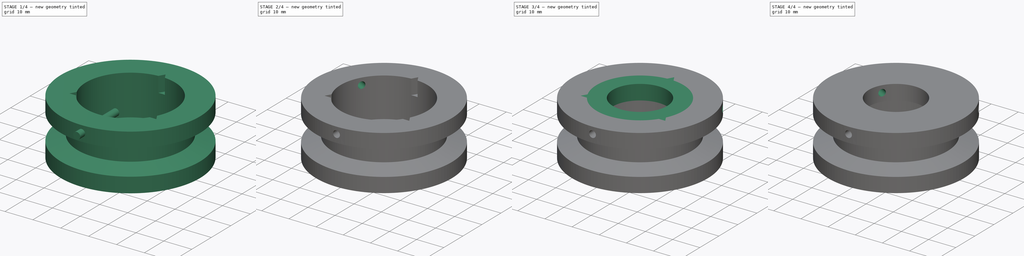
[diagram: build sequence overview — one tinted view per stage of 4, left to right]
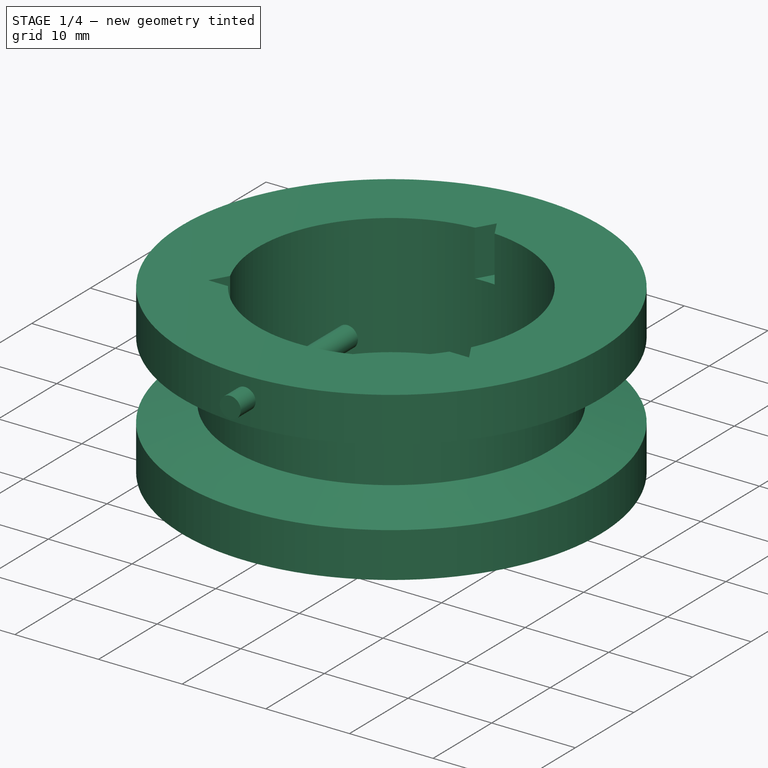
[diagram: stage 1 of 4 — iso view after this stage's code; geometry added in this stage tinted green]
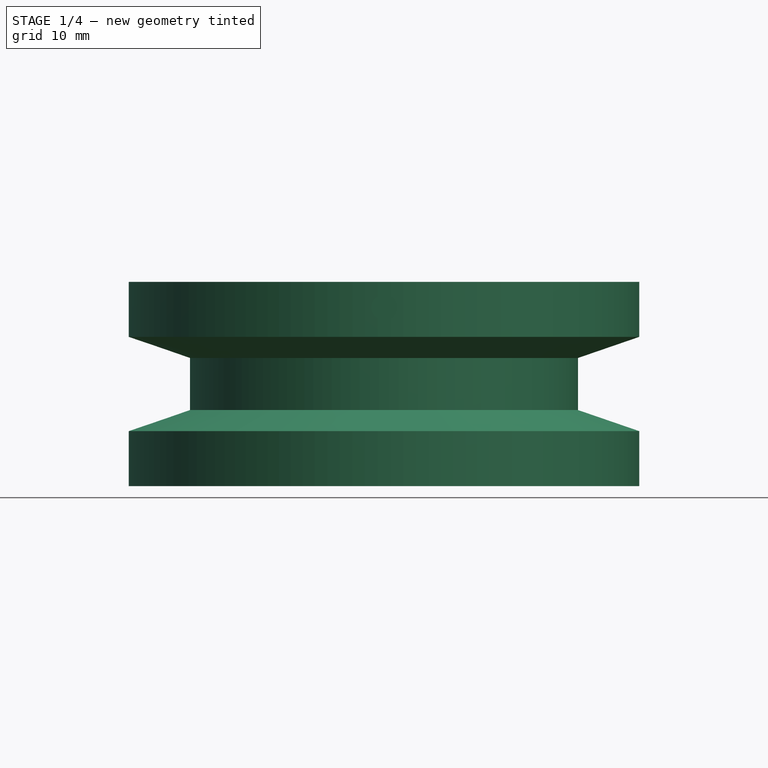
[diagram: stage 1 of 4 — front view after this stage's code; geometry added in this stage tinted green]
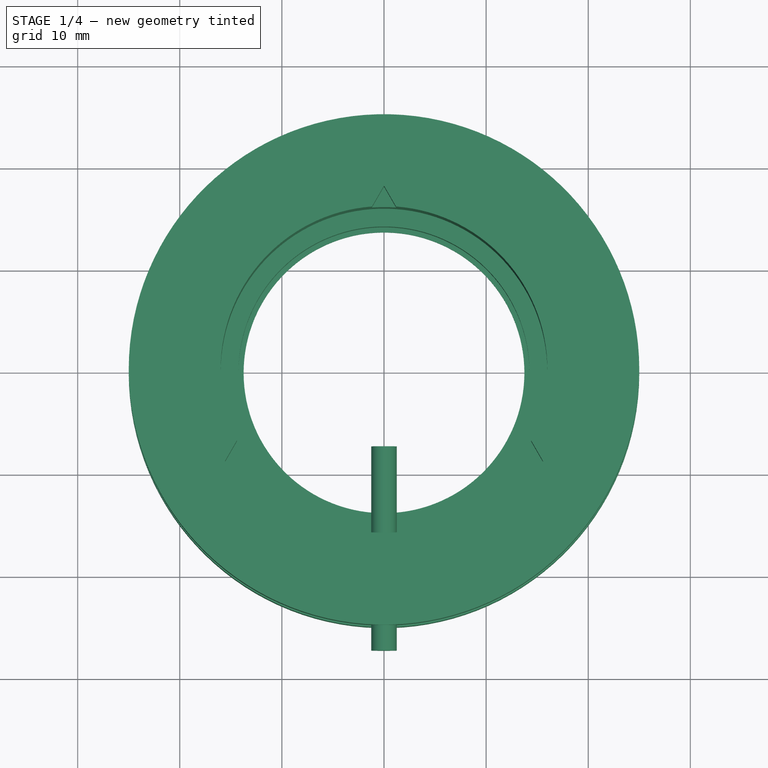
[diagram: stage 1 of 4 — top view after this stage's code; geometry added in this stage tinted green]
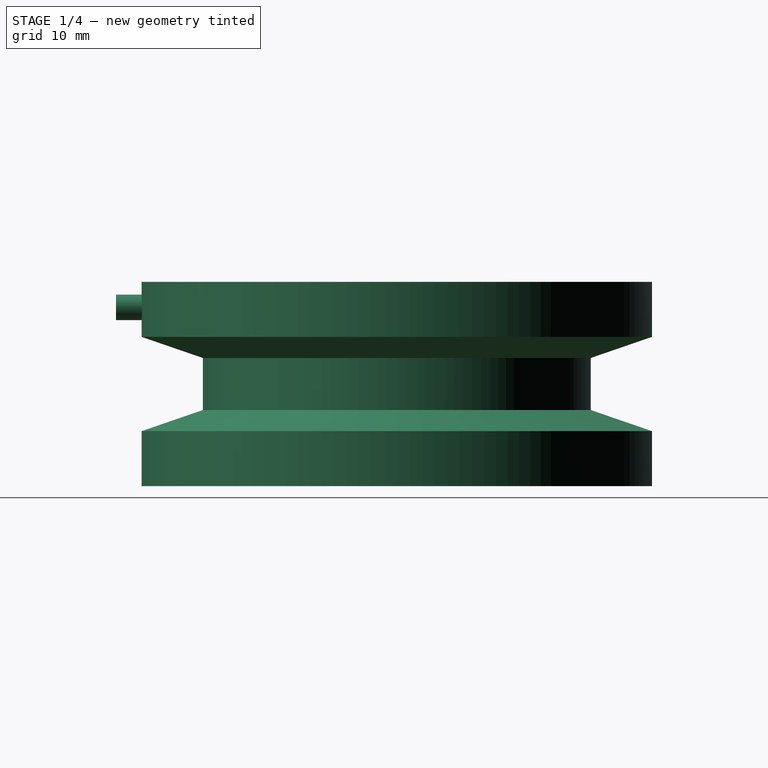
[diagram: stage 1 of 4 — right view after this stage's code; geometry added in this stage tinted green]
FCSTD DOCUMENT  (FreeCAD 0.15R4503 (Git))
Label: V_Belt_Pulley_V2
License: CC-BY 3.0
LicenseURL: http://creativecommons.org/licenses/by/3.0/
objects: Part::Cut×6, Sketcher::SketchObject×3, Part::Cylinder×3, App::DocumentObjectGroup×2, PartDesign::Revolution×1, PartDesign::Pad×1, PartDesign::Pocket×1
note: 18 computed .brp shape members not serialized (recipe doc carries the construction recipe); baked Part::Feature solids carry a one-line shape summary decoded from their .brp

FEATURE [Sketcher::SketchObject] Sketch  label="1_BodyBase_Sketch"
  Placement = pos=(0,0,0) rot=(1,0,0;1.5708rad)
  sketch-geometry (12):
    g0: LineSegment StartX=13.75 StartY=-10 StartZ=0 EndX=25 EndY=-10 EndZ=0
    g1: LineSegment StartX=25 StartY=-10 StartZ=0 EndX=25 EndY=-4.61597 EndZ=0
    g2: LineSegment StartX=25 StartY=-4.61597 StartZ=0 EndX=19 EndY=-2.55 EndZ=0
    g3: LineSegment StartX=14.25 StartY=-4.5 StartZ=0 EndX=14.25 EndY=-9 EndZ=0
    g4: LineSegment StartX=14.25 StartY=-9 StartZ=0 EndX=13.75 EndY=-9 EndZ=0
    g5: LineSegment StartX=13.75 StartY=-9 StartZ=0 EndX=13.75 EndY=-10 EndZ=0
    g6: LineSegment StartX=19 StartY=2.55 StartZ=0 EndX=19 EndY=-2.55 EndZ=0
    g7: LineSegment StartX=14.25 StartY=-4.5 StartZ=0 EndX=16 EndY=-4.5 EndZ=0
    g8: LineSegment StartX=16 StartY=-4.5 StartZ=0 EndX=16 EndY=10 EndZ=0
    g9: LineSegment StartX=19 StartY=2.55 StartZ=0 EndX=25 EndY=4.61597 EndZ=0
    g10: LineSegment StartX=25 StartY=4.61597 StartZ=0 EndX=25 EndY=10 EndZ=0
    g11: LineSegment StartX=25 StartY=10 StartZ=0 EndX=16 EndY=10 EndZ=0
  constraints (35):
    c: Horizontal(g0)
    c: Coincident(g0,g1)
    c: Vertical(g1)
    c: Coincident(g1,g2)
    c: Coincident(g3,g4)
    c: Coincident(g4,g5)
    c: Coincident(g5,g0)
    c: Horizontal(g4)
    c: Vertical(g3)
    c: Vertical(g5)
    c: DistanceY(g5) = -1
    c: DistanceY(g3,g0) = -5.5
    c: DistanceX(g-1,g0) = 13.75
    c: DistanceX(g-1,g3) = 14.25
    c: Coincident(g6,g2)
    c: Vertical(g6)
    c: DistanceX(g-1,g0) = 25
    c: Coincident(g3,g7)
    c: Coincident(g7,g8)
    c: Vertical(g8)
    c: DistanceX(g-1,g8) = 16
    c: Horizontal(g7)
    c: Angle(g2,g0) = 0.331613
    c: DistanceX(g-1,g6) = 19
    c: Symmetric(g2,g6,g-1)
    c: Coincident(g6,g9)
    c: Coincident(g9,g10)
    c: Vertical(g10)
    c: Coincident(g10,g11)
    c: Horizontal(g11)
    c: Coincident(g8,g11)
    c: DistanceY(g6) = -5.1
    c: Symmetric(g1,g9,g-1)
    c: Symmetric(g10,g0,g-1)
    c: DistanceY(g10,g0) = -20
FEATURE [PartDesign::Revolution] Revolution001  label="1_BodyBase_Revolution"
  Angle = 360
  Axis = (0,0,1)
  Base = (0,0,0)
  Placement = pos=(0,0,0) rot=(1,0,0;1.5708rad)
  ReferenceAxis = -> Sketch [V_Axis]
  Reversed = true
  Sketch = -> Sketch
FEATURE [Sketcher::SketchObject] Sketch005  label="2_Slots_Sketch"
  Placement = pos=(0,0,10) rot=(0,0,1;3.14159rad)
  Support = -> Revolution001 [Face10]
  sketch-geometry (4):
    g0: LineSegment StartX=0 StartY=-18 StartZ=0 EndX=15.5885 EndY=9 EndZ=0
    g1: LineSegment StartX=15.5885 StartY=9 StartZ=0 EndX=-15.5885 EndY=9 EndZ=0
    g2: LineSegment StartX=-15.5885 StartY=9 StartZ=0 EndX=0 EndY=-18 EndZ=0
    g3: Circle [constr] CenterX=0 CenterY=0 CenterZ=0 NormalX=0 NormalY=0 NormalZ=1 Radius=18
  constraints (12):
    c: Coincident(g0,g1)
    c: Coincident(g1,g2)
    c: Coincident(g2,g0)
    c: Equal(g0,g1)
    c: Equal(g0,g2)
    c: PointOnObject(g1,g3)
    c: PointOnObject(g2,g3)
    c: Coincident(g0,g-1)
    c: Radius(g3) = 18
    c: Coincident(g3,g-1)
    c: PointOnObject(g0,g3)
    c: PointOnObject(g0,g-2)
FEATURE [PartDesign::Pocket] Pocket  label="2_Slots_Pocket"
  Length = 5.5
  Placement = pos=(0,0,0) rot=(1,0,0;1.5708rad)
  Sketch = -> Sketch005
  Type = 0
FEATURE [Part::Cylinder] Cylinder  label="A_FrontHole_Cylinder"
  Angle = 360
  Height = 20
  Placement = pos=(0,-7.5,7.5) rot=(1,0,0;1.5708rad)
  Radius = 1.25
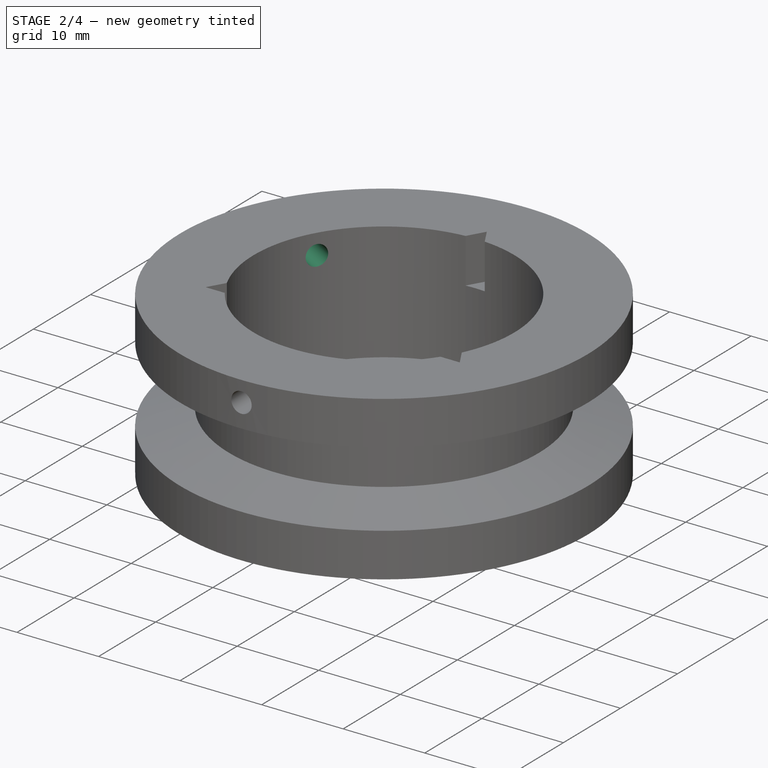
[diagram: stage 2 of 4 — iso view after this stage's code; geometry added in this stage tinted green]
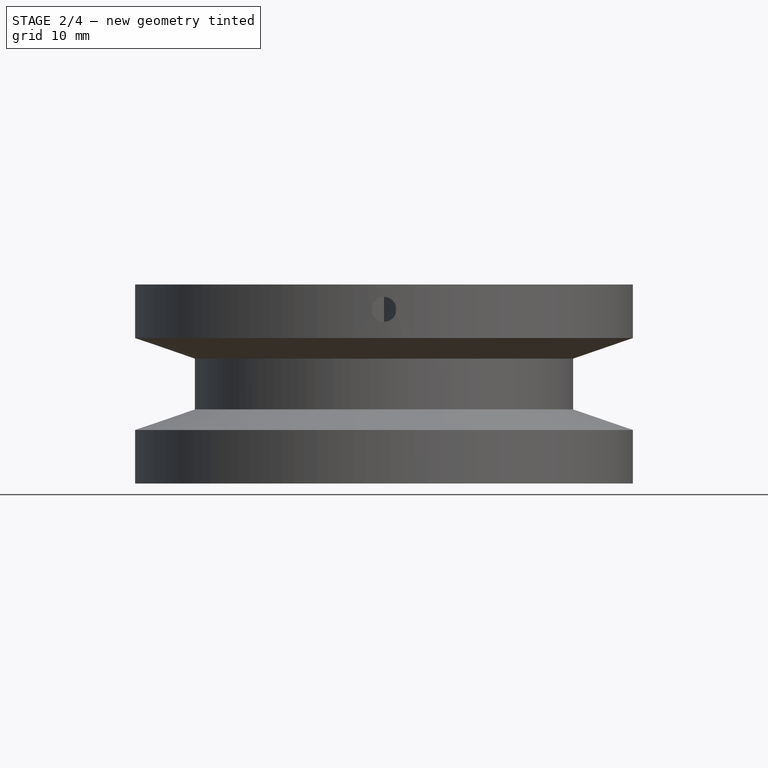
[diagram: stage 2 of 4 — front view after this stage's code; geometry added in this stage tinted green]
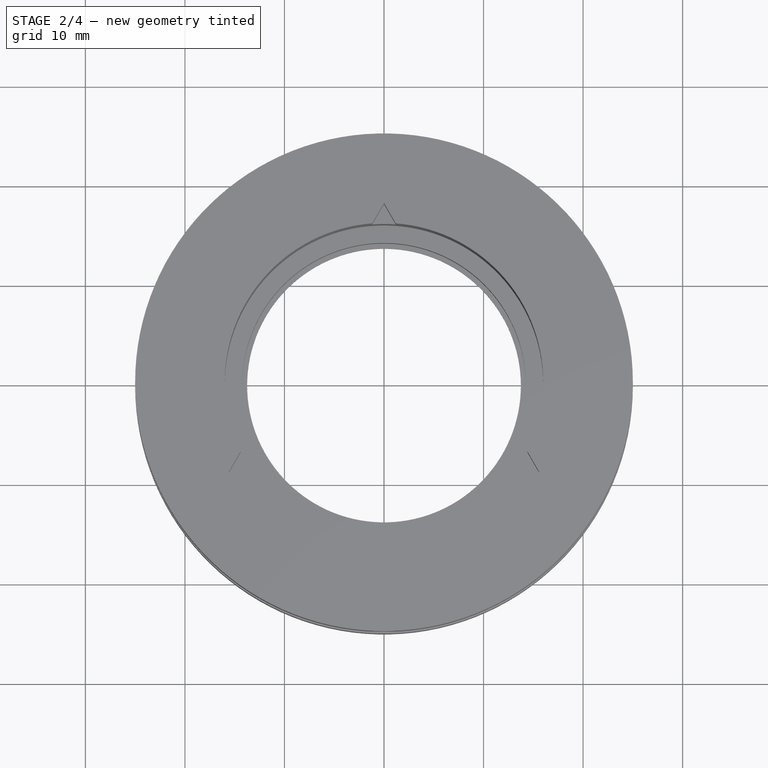
[diagram: stage 2 of 4 — top view after this stage's code; geometry added in this stage tinted green]
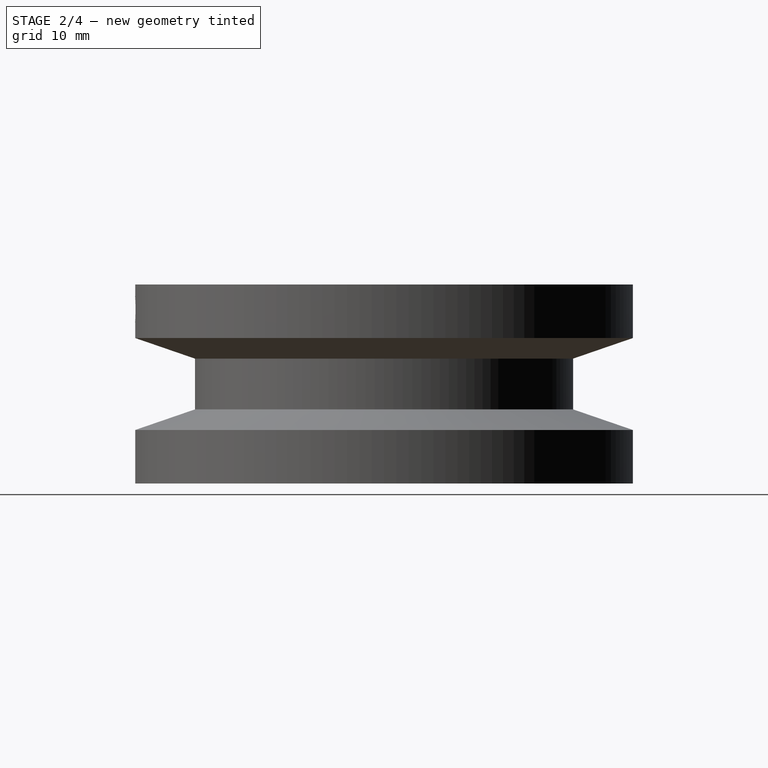
[diagram: stage 2 of 4 — right view after this stage's code; geometry added in this stage tinted green]
FEATURE [Part::Cylinder] Cylinder001  label="B_LeftHole_Cylinder"
  Angle = 360
  Height = 20
  Placement = pos=(-6.49519,3.75,7.5) rot=(0.377964,-0.654654,-0.654654;2.41886rad)
  Radius = 1.25
FEATURE [App::DocumentObjectGroup] Group001  label="Ring"
  Group = -> [Cut002]
FEATURE [Part::Cut] Cut003  label="2_BodyFrontHole_Cut"
  Base = -> Pocket
  Tool = -> Cylinder
FEATURE [Part::Cut] Cut004  label="3_BodyLeftHole_Cut"
  Base = -> Cut003
  Tool = -> Cylinder001
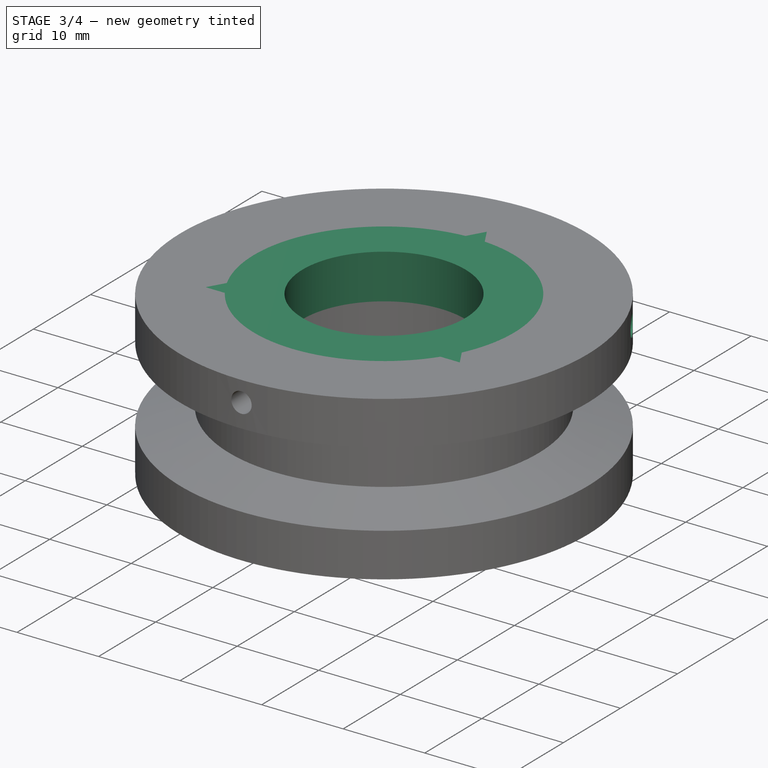
[diagram: stage 3 of 4 — iso view after this stage's code; geometry added in this stage tinted green]
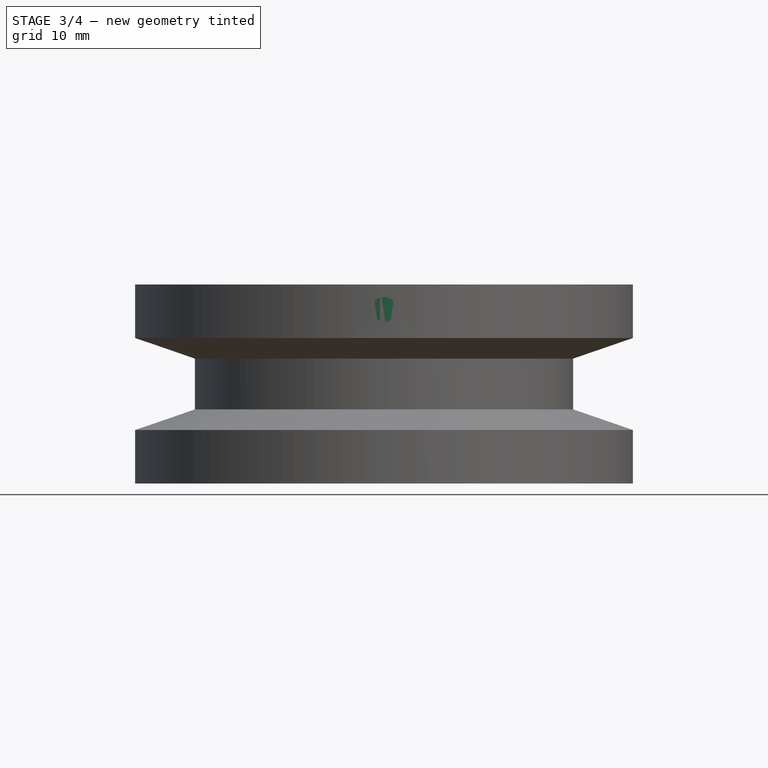
[diagram: stage 3 of 4 — front view after this stage's code; geometry added in this stage tinted green]
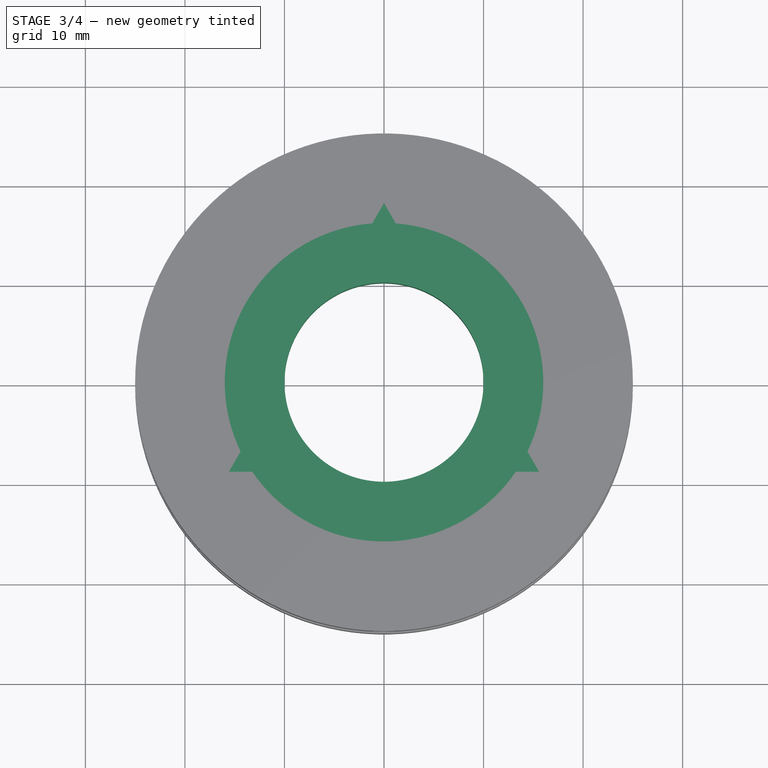
[diagram: stage 3 of 4 — top view after this stage's code; geometry added in this stage tinted green]
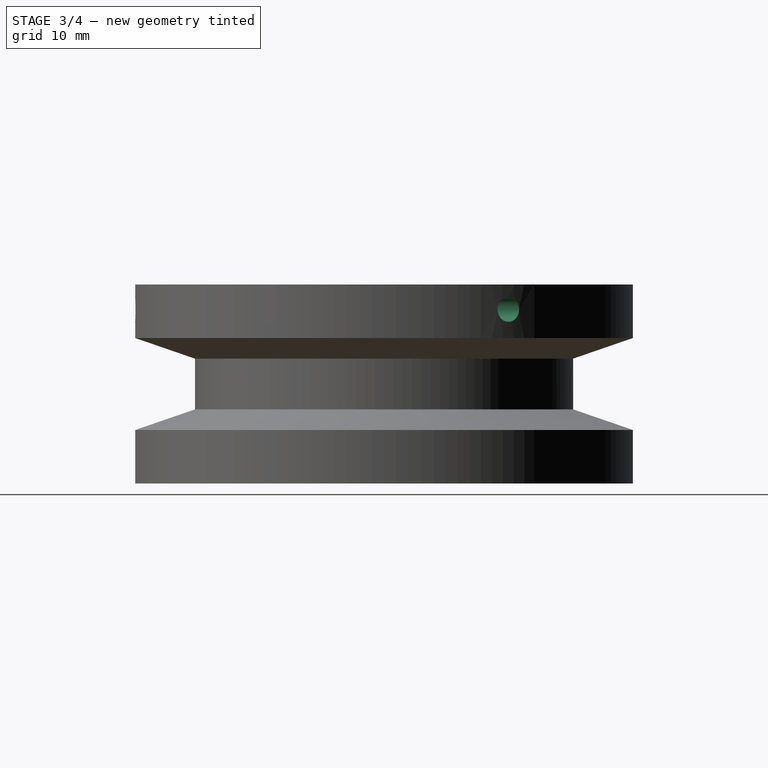
[diagram: stage 3 of 4 — right view after this stage's code; geometry added in this stage tinted green]
FEATURE [Sketcher::SketchObject] Sketch004  label="1_RingBase_Sketch"
  Placement = pos=(0,0,4.5) rot=(0,0,1;0rad)
  sketch-geometry (14):
    g0: Circle CenterX=0 CenterY=0 CenterZ=0 NormalX=0 NormalY=0 NormalZ=1 Radius=10
    g1: LineSegment [constr] StartX=-15.5885 StartY=-9 StartZ=0 EndX=15.5885 EndY=-9 EndZ=0
    g2: LineSegment [constr] StartX=15.5885 StartY=-9 StartZ=0 EndX=0 EndY=18 EndZ=0
    g3: LineSegment [constr] StartX=0 StartY=18 StartZ=0 EndX=-15.5885 EndY=-9 EndZ=0
    g4: Circle [constr] CenterX=0 CenterY=0 CenterZ=0 NormalX=0 NormalY=0 NormalZ=1 Radius=18
    g5: ArcOfCircle CenterX=0 CenterY=0 CenterZ=0 NormalX=0 NormalY=0 NormalZ=1 Radius=16 StartAngle=5.83339 EndAngle=7.78017
    g6: ArcOfCircle CenterX=0 CenterY=0 CenterZ=0 NormalX=0 NormalY=0 NormalZ=1 Radius=16 StartAngle=1.6446 EndAngle=3.59138
    g7: ArcOfCircle CenterX=0 CenterY=0 CenterZ=0 NormalX=0 NormalY=0 NormalZ=1 Radius=16 StartAngle=3.739 EndAngle=5.68578
    g8: LineSegment StartX=-1.17985 StartY=15.9564 StartZ=0 EndX=0 EndY=18 EndZ=0
    g9: LineSegment StartX=0 StartY=18 StartZ=0 EndX=1.17985 EndY=15.9564 EndZ=0
    g10: LineSegment StartX=14.4086 StartY=-6.95644 StartZ=0 EndX=15.5885 EndY=-9 EndZ=0
    g11: LineSegment StartX=15.5885 StartY=-9 StartZ=0 EndX=13.2288 EndY=-9 EndZ=0
    g12: LineSegment StartX=-14.4086 StartY=-6.95644 StartZ=0 EndX=-15.5885 EndY=-9 EndZ=0
    g13: LineSegment StartX=-15.5885 StartY=-9 StartZ=0 EndX=-13.2288 EndY=-9 EndZ=0
  constraints (37):
    c: Radius(g0) = 10
    c: Coincident(g1,g2)
    c: Coincident(g2,g3)
    c: Coincident(g3,g1)
    c: Equal(g1,g2)
    c: Equal(g1,g3)
    c: PointOnObject(g1,g4)
    c: PointOnObject(g2,g4)
    c: Radius(g4) = 18
    c: Coincident(g5,g-1)
    c: PointOnObject(g5,g2)
    c: PointOnObject(g5,g2)
    c: Coincident(g0,g4)
    c: Coincident(g0,g5)
    c: Radius(g5) = 16
    c: Coincident(g6,g-1)
    c: PointOnObject(g6,g3)
    c: PointOnObject(g6,g3)
    c: Coincident(g7,g-1)
    c: PointOnObject(g7,g1)
    c: PointOnObject(g7,g1)
    c: Equal(g5,g6)
    c: Equal(g6,g7)
    c: Coincident(g6,g8)
    c: Coincident(g8,g9)
    c: Coincident(g8,g2)
    c: Coincident(g9,g5)
    c: Coincident(g10,g11)
    c: Coincident(g12,g13)
    c: Coincident(g13,g7)
    c: Coincident(g1,g12)
    c: Coincident(g12,g6)
    c: Coincident(g5,g10)
    c: Coincident(g11,g7)
    c: Coincident(g1,g10)
    c: PointOnObject(g1,g4)
    c: PointOnObject(g2,g-2)
FEATURE [PartDesign::Pad] Pad  label="1_RingBase_Pad"
  Length = 5.5
  Length2 = 100
  Placement = pos=(0,0,4.5) rot=(0,0,1;0rad)
  Sketch = -> Sketch004
  Type = 0
FEATURE [Part::Cylinder] Cylinder002  label="C_RightHole_Cylinder"
  Angle = 360
  Height = 20
  Placement = pos=(6.49519,3.75,7.5) rot=(0.377964,0.654654,0.654654;2.41886rad)
  Radius = 1.25
FEATURE [Part::Cut] Cut005  label="4_BodyRightHole_Cut"
  Base = -> Cut004
  Tool = -> Cylinder002
FEATURE [App::DocumentObjectGroup] Group  label="Body"
  Group = -> [Revolution001,Cut005]
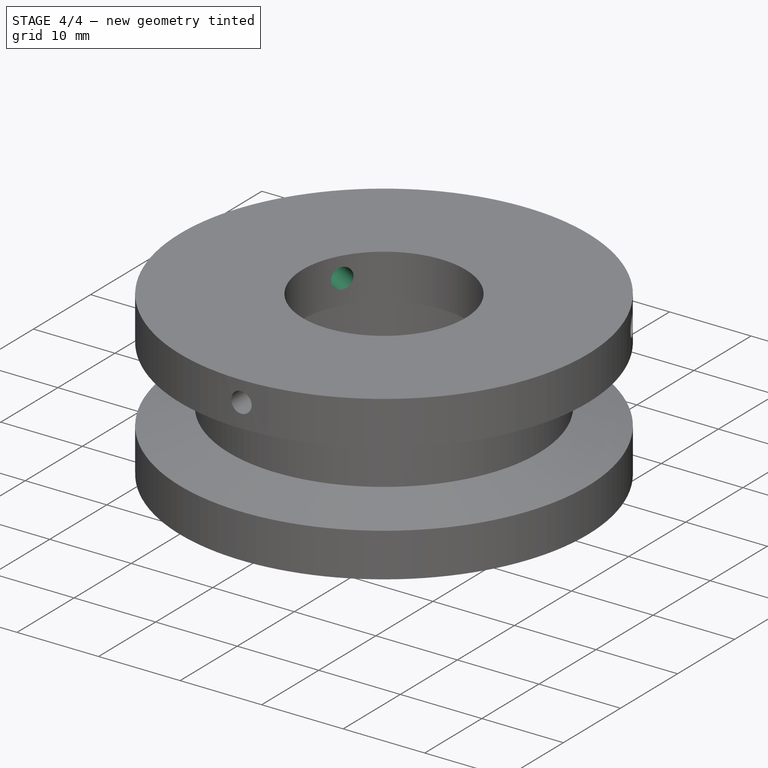
[diagram: stage 4 of 4 — iso view after this stage's code; geometry added in this stage tinted green]
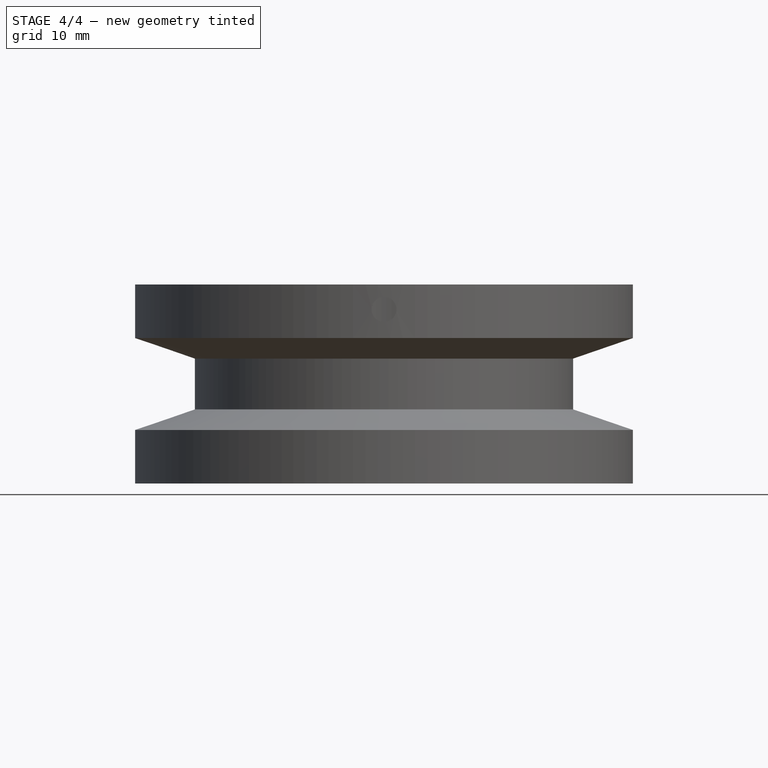
[diagram: stage 4 of 4 — front view after this stage's code; geometry added in this stage tinted green]
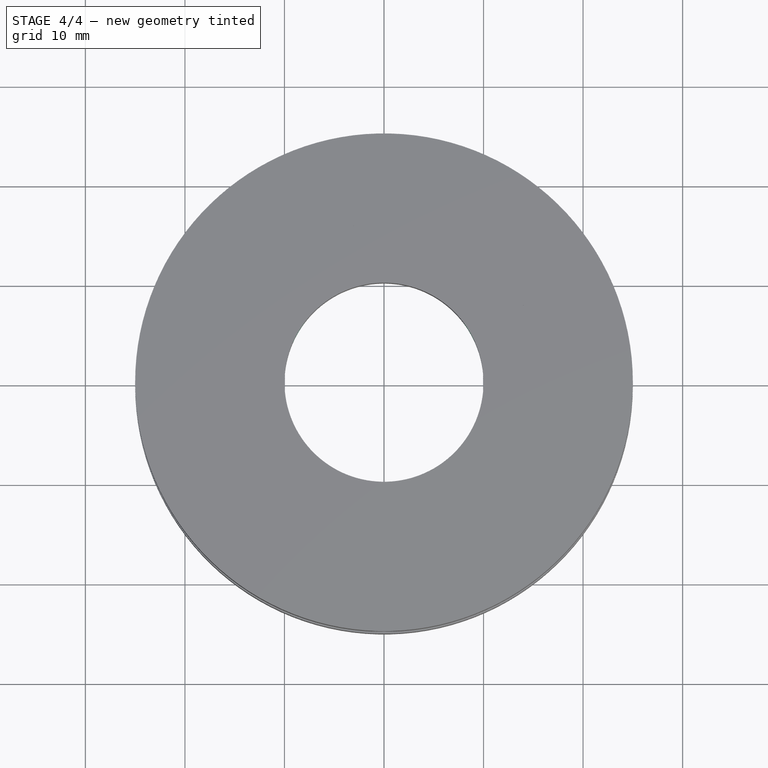
[diagram: stage 4 of 4 — top view after this stage's code; geometry added in this stage tinted green]
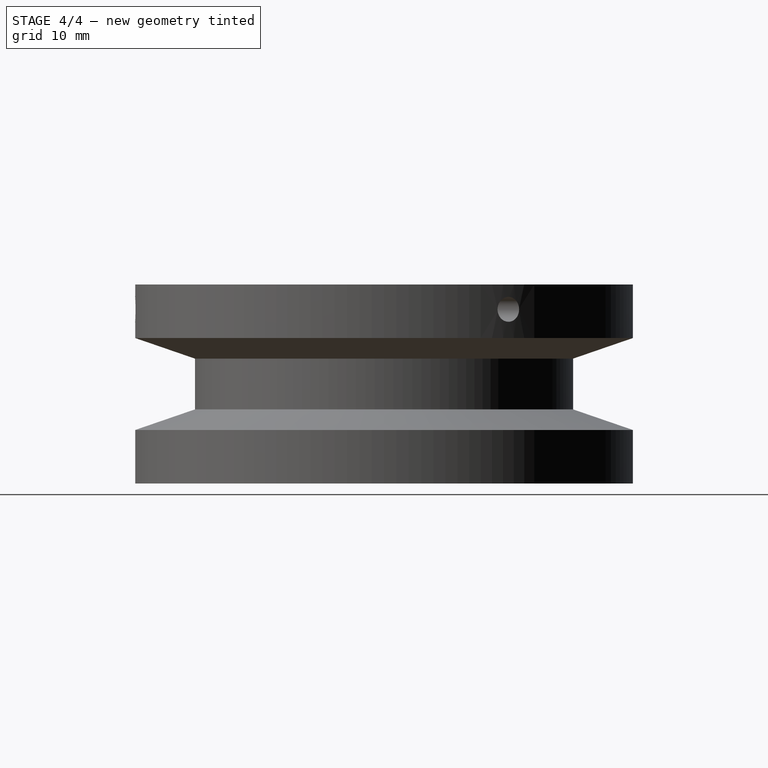
[diagram: stage 4 of 4 — right view after this stage's code; geometry added in this stage tinted green]
FEATURE [Part::Cut] Cut  label="2_RingFrontHole_Cut"
  Base = -> Pad
  Tool = -> Cylinder
FEATURE [Part::Cut] Cut001  label="3_RingLeftHole_Cut"
  Base = -> Cut
  Tool = -> Cylinder001
FEATURE [Part::Cut] Cut002  label="4_RingRightHole_Cut"
  Base = -> Cut001
  Tool = -> Cylinder002
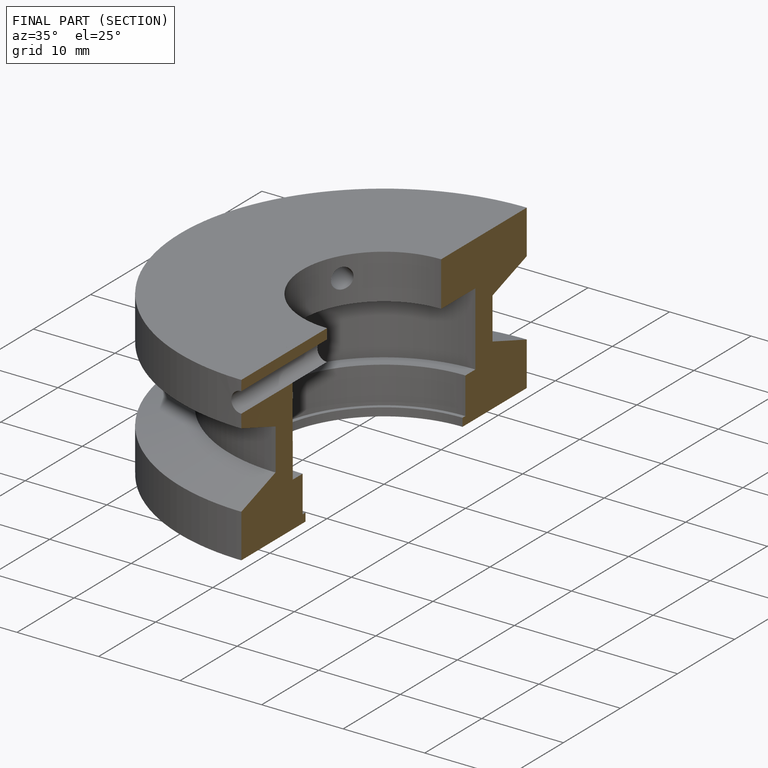
[diagram: finished part — half-section view (interior)]
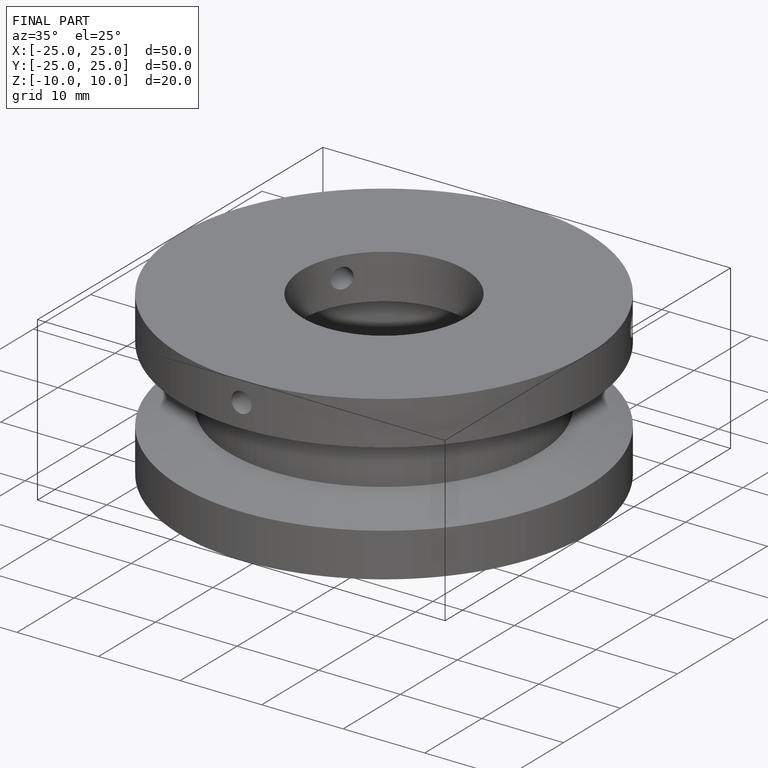
[diagram: finished part — iso view with bounding-box wireframe]
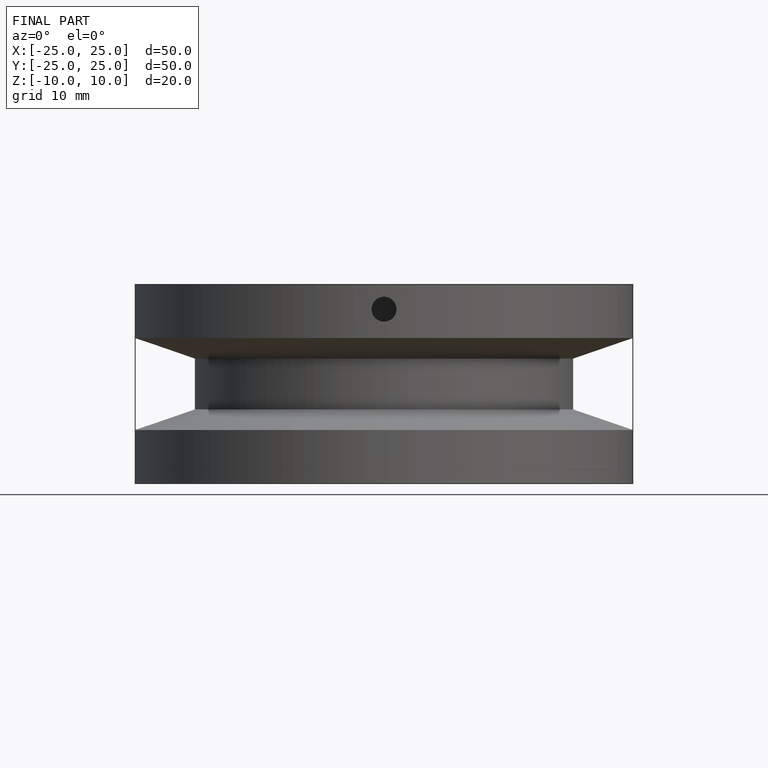
[diagram: finished part — front view with bounding-box wireframe]
